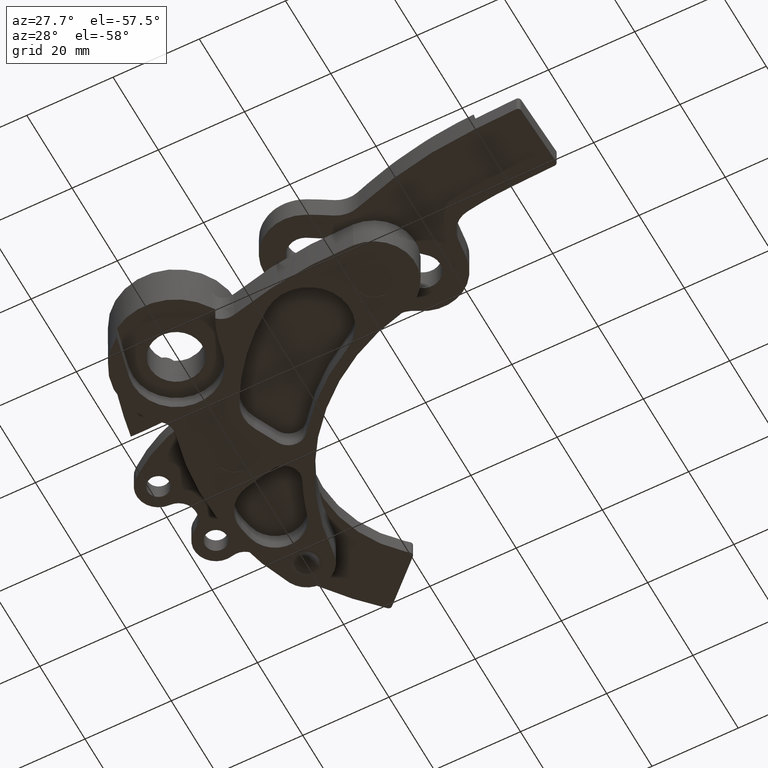
[diagram: clean part render]
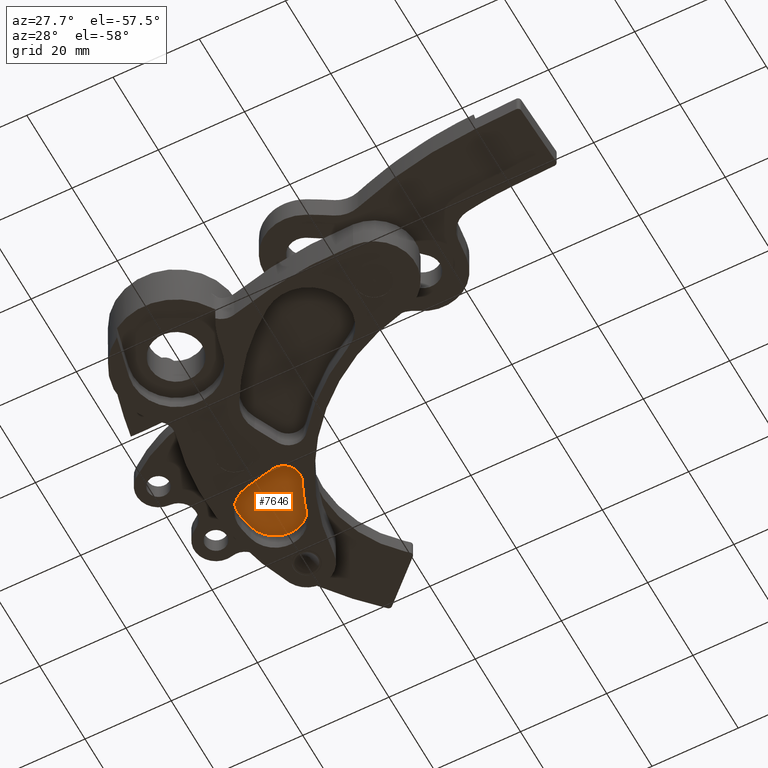
[diagram: same view with one face highlighted and labeled with its STEP entity id]
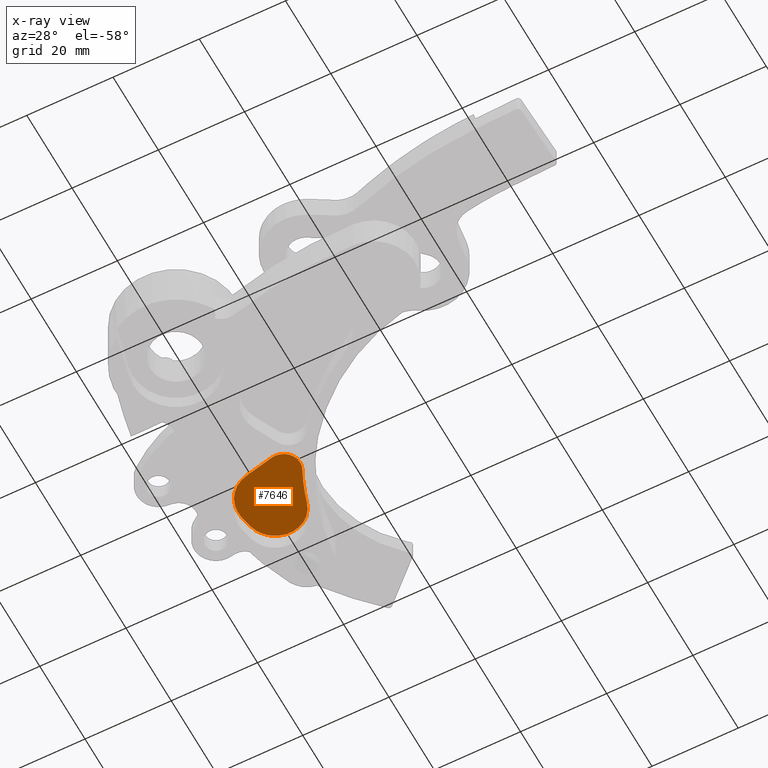
[diagram: x-ray of the same camera — body ghosted, the highlighted face saturated]
A machine part, auxiliary view. The second image highlights one B-rep face of the part: STEP entity #7646.
The next image is the same camera in x-ray: the body ghosted, the highlighted face saturated — about 0% of this face is hidden behind the body in this view.
In plain terms, the highlighted planar face has unit normal (0, -0, -1).
Its self-contained STEP definition (entity closure, byte-faithful):
#166 = CIRCLE ( 'NONE', #2474, 2.286983302156861100 ) ;
#183 = CIRCLE ( 'NONE', #2482, 0.2629615186702531900 ) ;
#200 = CIRCLE ( 'NONE', #2489, 2.111280614520993900 ) ;
#206 = LINE ( 'NONE', #467, #208 ) ;
#208 = VECTOR ( 'NONE', #460, 39.37007874015748100 ) ;
#222 = CIRCLE ( 'NONE', #2499, 0.2895186497047291800 ) ;
#268 = CIRCLE ( 'NONE', #2516, 0.1500000000004800300 ) ;
#396 = CARTESIAN_POINT ( 'NONE',  ( 5.903692971494557200, -5.050970220932416800, -0.1771653543307086500 ) ) ;
#397 = DIRECTION ( 'NONE',  ( 0.0000000000000000000, 0.0000000000000000000, 1.000000000000000000 ) ) ;
#398 = DIRECTION ( 'NONE',  ( 1.000000000000000000, 0.0000000000000000000, 0.0000000000000000000 ) ) ;
#434 = CARTESIAN_POINT ( 'NONE',  ( 5.992796374444518300, -7.073029756062637400, -0.1771653543307086500 ) ) ;
#435 = DIRECTION ( 'NONE',  ( 0.0000000000000000000, 0.0000000000000000000, 1.000000000000000000 ) ) ;
#436 = DIRECTION ( 'NONE',  ( 1.000000000000000000, 0.0000000000000000000, 0.0000000000000000000 ) ) ;
#460 = DIRECTION ( 'NONE',  ( 0.03106656399508397200, -0.9995173178097213100, -0.0000000000000000000 ) ) ;
#467 = CARTESIAN_POINT ( 'NONE',  ( 5.602407250917753600, -7.057393734671830300, -0.1771653543307086500 ) ) ;
#468 = CARTESIAN_POINT ( 'NONE',  ( 7.081488472039823500, -4.963106718685666300, -0.1771653543307086500 ) ) ;
#469 = DIRECTION ( 'NONE',  ( -0.0000000000000000000, -0.0000000000000000000, -1.000000000000000000 ) ) ;
#470 = DIRECTION ( 'NONE',  ( 1.000000000000000000, 0.0000000000000000000, 0.0000000000000000000 ) ) ;
#536 = CARTESIAN_POINT ( 'NONE',  ( 5.891786155126516700, -7.048399385013009800, -0.1771653543307086500 ) ) ;
#537 = DIRECTION ( 'NONE',  ( 0.0000000000000000000, 0.0000000000000000000, 1.000000000000000000 ) ) ;
#538 = DIRECTION ( 'NONE',  ( 1.000000000000000000, 0.0000000000000000000, 0.0000000000000000000 ) ) ;
#615 = CARTESIAN_POINT ( 'NONE',  ( 5.744059116766789200, -6.786475232526000500, -0.1771653543307086500 ) ) ;
#616 = DIRECTION ( 'NONE',  ( 0.0000000000000000000, 0.0000000000000000000, 1.000000000000000000 ) ) ;
#617 = DIRECTION ( 'NONE',  ( 1.000000000000000000, 0.0000000000000000000, 0.0000000000000000000 ) ) ;
#1163 = FACE_OUTER_BOUND ( 'NONE', #7480, .T. ) ;
#1667 = CARTESIAN_POINT ( 'NONE',  ( 6.113375536673084200, -6.839343158377569200, -0.1771653543307086500 ) ) ;
#2229 = EDGE_CURVE ( 'NONE', #8246, #8267, #166, .T. ) ;
#2242 = EDGE_CURVE ( 'NONE', #8267, #7239, #183, .T. ) ;
#2256 = EDGE_CURVE ( 'NONE', #7239, #8179, #200, .T. ) ;
#2257 = EDGE_CURVE ( 'NONE', #8191, #8144, #206, .T. ) ;
#2275 = EDGE_CURVE ( 'NONE', #8144, #8246, #222, .T. ) ;
#2305 = EDGE_CURVE ( 'NONE', #8179, #8191, #268, .T. ) ;
#2474 = AXIS2_PLACEMENT_3D ( 'NONE', #396, #397, #398 ) ;
#2482 = AXIS2_PLACEMENT_3D ( 'NONE', #434, #435, #436 ) ;
#2489 = AXIS2_PLACEMENT_3D ( 'NONE', #468, #469, #470 ) ;
#2499 = AXIS2_PLACEMENT_3D ( 'NONE', #536, #537, #538 ) ;
#2516 = AXIS2_PLACEMENT_3D ( 'NONE', #615, #616, #617 ) ;
#3828 = CARTESIAN_POINT ( 'NONE',  ( 7.081488472039823500, -4.963106718685666300, -0.1771653543307086500 ) ) ;
#3830 = PLANE ( 'NONE',  #8430 ) ;
#3832 = DIRECTION ( 'NONE',  ( 0.0000000000000000000, 0.0000000000000000000, 1.000000000000000000 ) ) ;
#3833 = DIRECTION ( 'NONE',  ( 1.000000000000000000, 0.0000000000000000000, -0.0000000000000000000 ) ) ;
#6200 = CARTESIAN_POINT ( 'NONE',  ( 5.602407250917753600, -7.057393734671830300, -0.1771653543307086500 ) ) ;
#6210 = CARTESIAN_POINT ( 'NONE',  ( 5.832776280838907600, -6.665523734812476100, -0.1771653543307086500 ) ) ;
#6216 = CARTESIAN_POINT ( 'NONE',  ( 5.594131519094850600, -6.791135217125276600, -0.1771653543307086500 ) ) ;
#6248 = CARTESIAN_POINT ( 'NONE',  ( 5.890060344663274900, -7.337912890924382500, -0.1771653543307086500 ) ) ;
#6257 = CARTESIAN_POINT ( 'NONE',  ( 6.004372715346415900, -7.335736338836440500, -0.1771653543307086500 ) ) ;
#7239 = VERTEX_POINT ( 'NONE', #1667 ) ;
#7245 = ORIENTED_EDGE ( 'NONE', *, *, #2305, .T. ) ;
#7254 = ORIENTED_EDGE ( 'NONE', *, *, #2229, .T. ) ;
#7275 = ORIENTED_EDGE ( 'NONE', *, *, #2257, .T. ) ;
#7480 = EDGE_LOOP ( 'NONE', ( #8188, #7245, #7275, #8141, #7254, #8180 ) ) ;
#7646 = ADVANCED_FACE ( 'NONE', ( #1163 ), #3830, .T. ) ;
#8141 = ORIENTED_EDGE ( 'NONE', *, *, #2275, .T. ) ;
#8144 = VERTEX_POINT ( 'NONE', #6200 ) ;
#8179 = VERTEX_POINT ( 'NONE', #6210 ) ;
#8180 = ORIENTED_EDGE ( 'NONE', *, *, #2242, .T. ) ;
#8188 = ORIENTED_EDGE ( 'NONE', *, *, #2256, .T. ) ;
#8191 = VERTEX_POINT ( 'NONE', #6216 ) ;
#8246 = VERTEX_POINT ( 'NONE', #6248 ) ;
#8267 = VERTEX_POINT ( 'NONE', #6257 ) ;
#8430 = AXIS2_PLACEMENT_3D ( 'NONE', #3828, #3832, #3833 ) ;